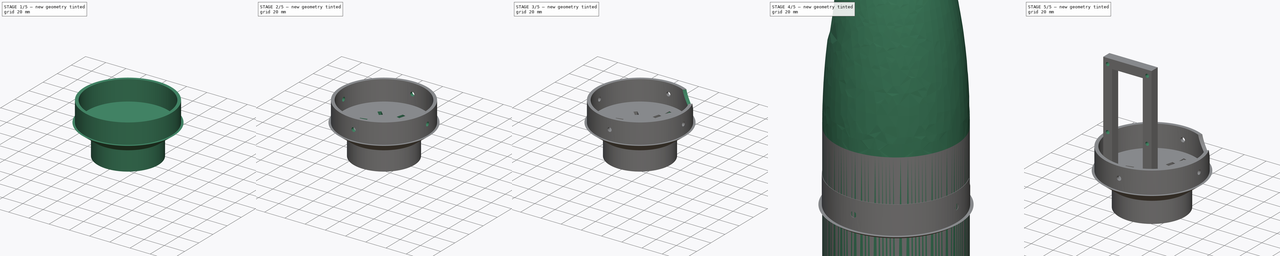
[diagram: build sequence overview — one tinted view per stage of 5, left to right]
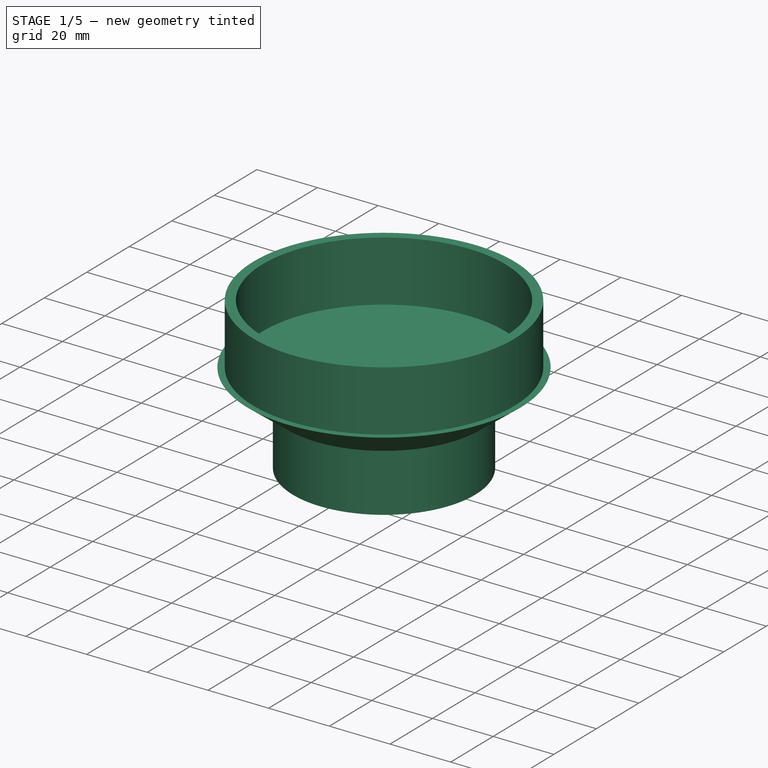
[diagram: stage 1 of 5 — iso view after this stage's code; geometry added in this stage tinted green]
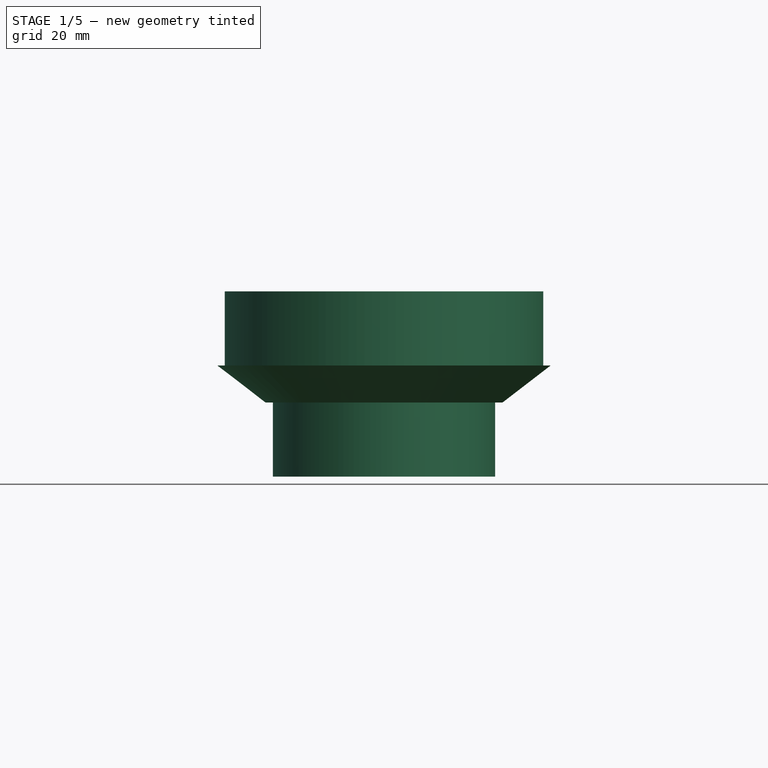
[diagram: stage 1 of 5 — front view after this stage's code; geometry added in this stage tinted green]
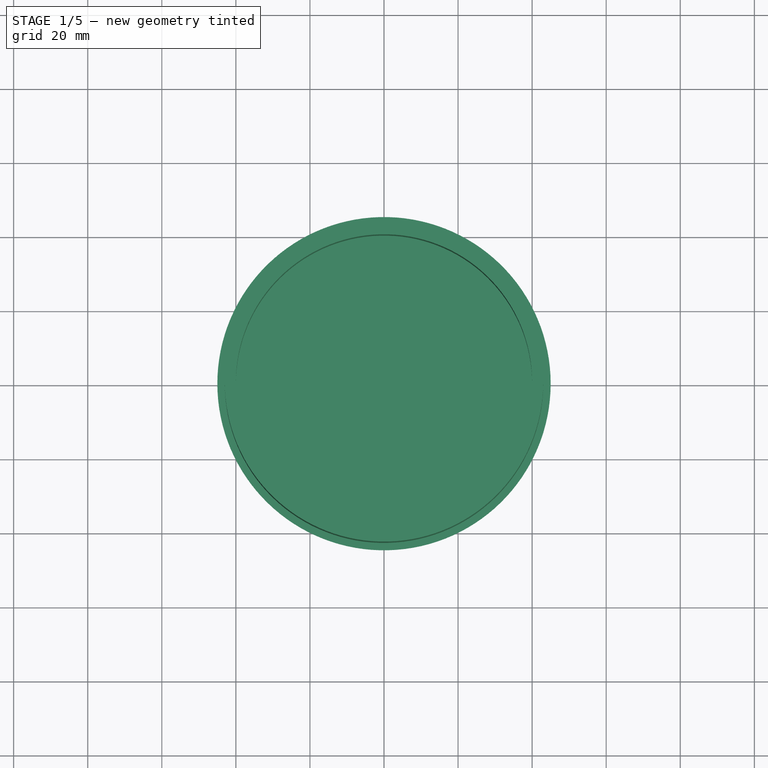
[diagram: stage 1 of 5 — top view after this stage's code; geometry added in this stage tinted green]
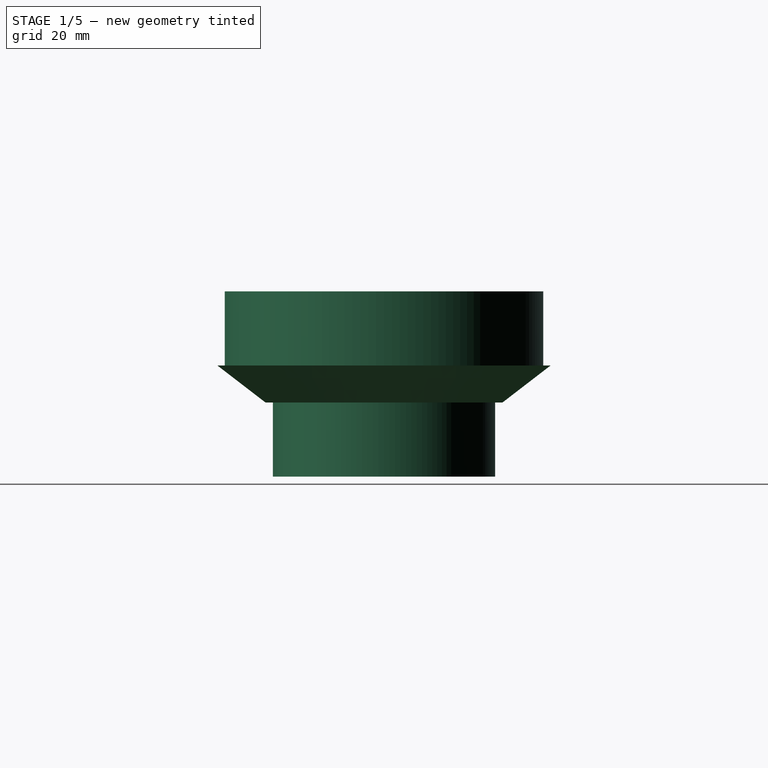
[diagram: stage 1 of 5 — right view after this stage's code; geometry added in this stage tinted green]
FCSTD DOCUMENT  (FreeCAD 1.0R39109 (Git))
Label: 250_etage2b_base_coiffe
License: All rights reserved
LicenseURL: https://en.wikipedia.org/wiki/All_rights_reserved
objects: Sketcher::SketchObject×9, PartDesign::Pocket×9, PartDesign::PolarPattern×3, Part::Cylinder×2, PartDesign::FeatureBase×2, Part::Box×2, PartDesign::Body×2, Part::Cone×1, Part::FeaturePython×1, Part::MultiFuse×1, Part::Cut×1, Part::Ellipsoid×1, Part::Fuse×1, Part::MultiCommon×1, App::Part×1
note: 68 computed .brp shape members not serialized (recipe doc carries the construction recipe); baked Part::Feature solids carry a one-line shape summary decoded from their .brp

FEATURE [Part::Cylinder] Cylinder  label="Cylindre"
  Angle = 360
  AttacherType = Attacher::AttachEngine3D
  FirstAngle = 0
  Height = 20
  Placement = pos=(0,0,-10) rot=(0,0,1;0rad)
  Radius = 30
  SecondAngle = 0
FEATURE [Part::Cone] Cone  label="Cône"
  Angle = 360
  AttacherType = Attacher::AttachEngine3D
  Height = 10
  Placement = pos=(0,0,10) rot=(0,0,1;0rad)
  Radius1 = 32
  Radius2 = 45
FEATURE [Part::FeaturePython] Tube  # WARN: FeaturePython — macro-defined, semantics opaque (R4)
  AttacherType = Attacher::AttachEngine3D
  Height = 20
  InnerRadius = 40
  OuterRadius = 43
  Placement = pos=(0,0,20) rot=(0,0,1;0rad)
FEATURE [Sketcher::SketchObject] Sketch
  ArcFitTolerance = 0
  AttachmentSupport = -> [XY_Plane]
  FullyConstrained = true
  MakeInternals = false
  MapMode = 5
  sketch-geometry (1):
    g0: Circle CenterX=0 CenterY=0 CenterZ=0 NormalX=0 NormalY=0 NormalZ=1 AngleXU=0 Radius=2
  constraints (2):
    c: Coincident(g0,g-1)
    c: Radius(g0) = 2
FEATURE [Part::MultiFuse] Fusion
  Shapes = -> [Tube,Cylinder,Cone]
FEATURE [PartDesign::FeatureBase] BaseFeature
  BaseFeature = -> Fusion
  Suppressed = false
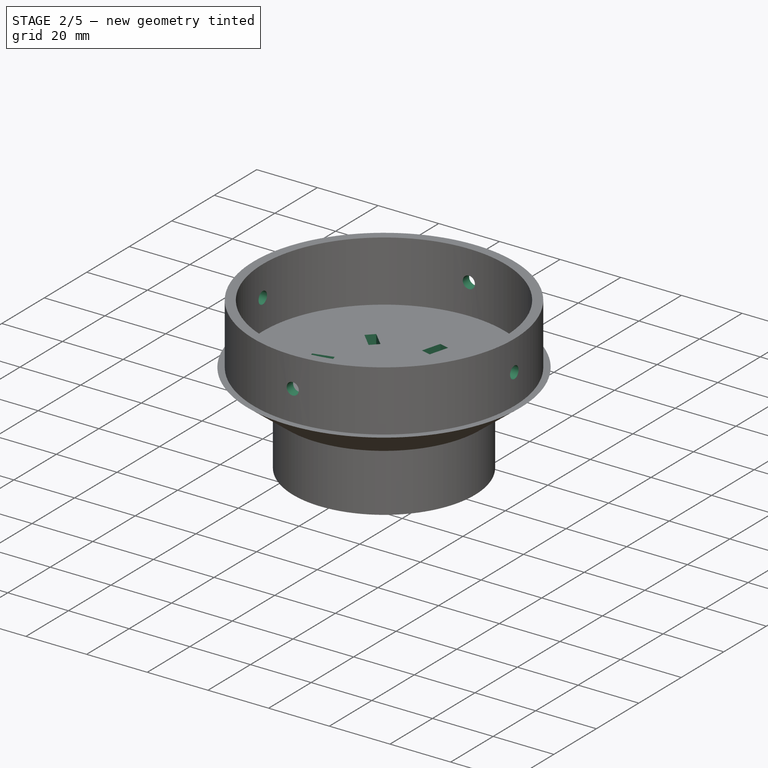
[diagram: stage 2 of 5 — iso view after this stage's code; geometry added in this stage tinted green]
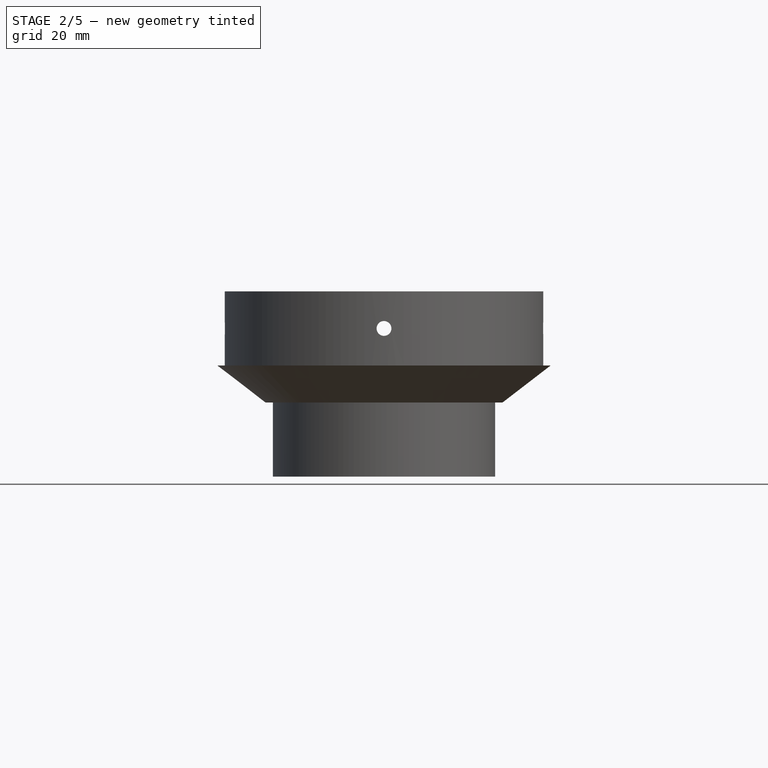
[diagram: stage 2 of 5 — front view after this stage's code; geometry added in this stage tinted green]
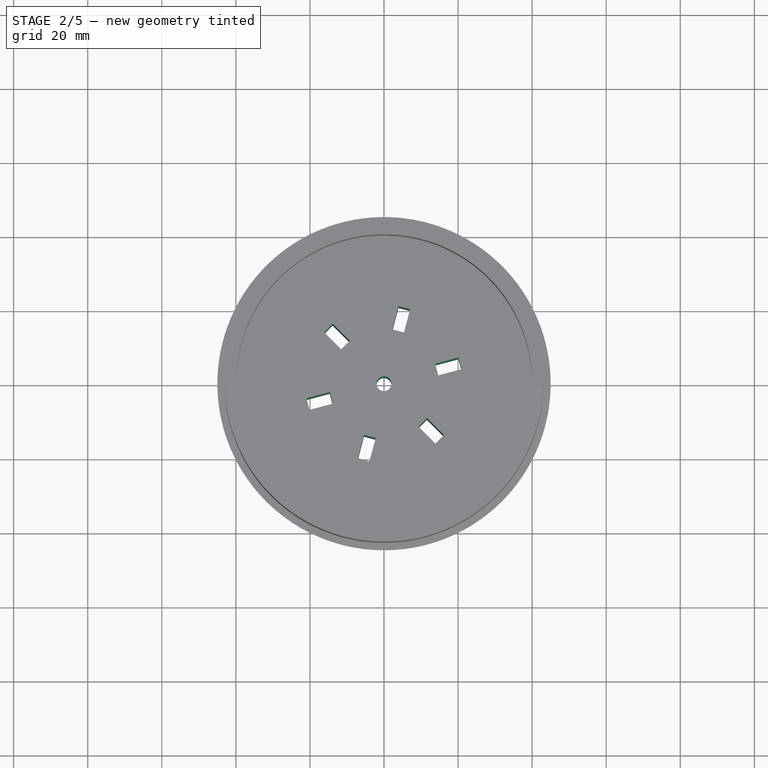
[diagram: stage 2 of 5 — top view after this stage's code; geometry added in this stage tinted green]
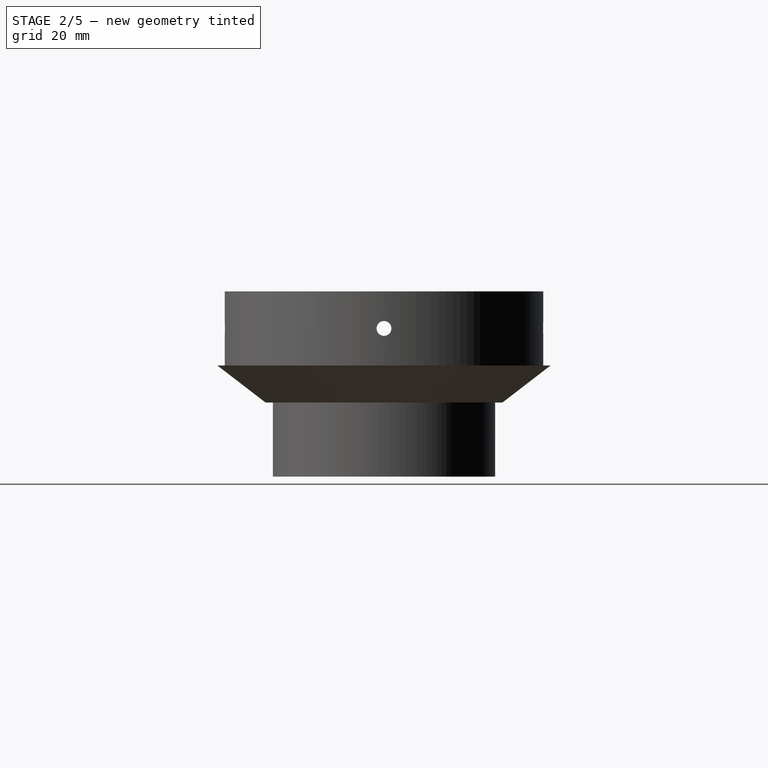
[diagram: stage 2 of 5 — right view after this stage's code; geometry added in this stage tinted green]
FEATURE [PartDesign::Pocket] Pocket  label="Trou crochet"
  BaseFeature = -> BaseFeature
  Direction = (0,0,-1)
  Length = 5
  Length2 = 5
  Midplane = true
  Profile = -> Sketch
  ReferenceAxis = -> Sketch [N_Axis]
  Suppressed = false
  Type = 1
FEATURE [Sketcher::SketchObject] Sketch001
  ArcFitTolerance = 0
  AttachmentSupport = -> [XZ_Plane]
  FullyConstrained = true
  MakeInternals = false
  MapMode = 5
  Placement = pos=(0,0,0) rot=(1,0,0;1.5708rad)
  sketch-geometry (1):
    g0: Circle CenterX=0 CenterY=30 CenterZ=0 NormalX=0 NormalY=0 NormalZ=1 AngleXU=0 Radius=2
  constraints (3):
    c: PointOnObject(g0,g-2)
    c: DistanceY(g-1,g0) = 30
    c: Radius(g0) = 2
FEATURE [PartDesign::Pocket] Pocket001  label="Trou insert M3"
  BaseFeature = -> Pocket
  Direction = (0,1,-2e-16)
  Length = 5
  Length2 = 5
  Midplane = true
  Profile = -> Sketch001
  ReferenceAxis = -> Sketch001 [N_Axis]
  Suppressed = false
  Type = 1
FEATURE [PartDesign::PolarPattern] PolarPattern  label="Trous insert M3"
  Angle = 360
  Axis = -> Z_Axis
  BaseFeature = -> Pocket001
  Mode = 0
  Occurrences = 4
  Offset = 120
  Originals = -> [Pocket001]
  Suppressed = false
  TransformMode = 0
FEATURE [Sketcher::SketchObject] Sketch002
  ArcFitTolerance = 0
  AttachmentOffset = pos=(0,0,0) rot=(0,0,1;0.785398rad)
  AttachmentSupport = -> [XY_Plane]
  FullyConstrained = true
  MakeInternals = false
  MapMode = 5
  Placement = pos=(0,0,0) rot=(0,0,1;0.785398rad)
  sketch-geometry (5):
    g0: LineSegment StartX=-1.625 StartY=21.25 StartZ=0 EndX=-1.625 EndY=14.75 EndZ=0
    g1: LineSegment StartX=-1.625 StartY=14.75 StartZ=0 EndX=1.625 EndY=14.75 EndZ=0
    g2: LineSegment StartX=1.625 StartY=14.75 StartZ=0 EndX=1.625 EndY=21.25 EndZ=0
    g3: LineSegment StartX=1.625 StartY=21.25 StartZ=0 EndX=-1.625 EndY=21.25 EndZ=0
    g4: GeomPoint [constr] X=0 Y=18 Z=0
  constraints (13):
    c: Coincident(g0,g1)
    c: Coincident(g1,g2)
    c: Coincident(g2,g3)
    c: Coincident(g3,g0)
    c: Horizontal(g1)
    c: Horizontal(g3)
    c: Vertical(g0)
    c: Vertical(g2)
    c: Symmetric(g1,g0,g4)
    c: PointOnObject(g4,g-2)
    c: Distance(g3) = 3.25
    c: DistanceY(g-1,g4) = 18
    c: Distance(g0,g0) = 6.5
FEATURE [PartDesign::Pocket] Pocket002  label="Passe fil"
  BaseFeature = -> PolarPattern
  Direction = (0,0,-1)
  Length = 5
  Length2 = 5
  Midplane = true
  Profile = -> Sketch002
  ReferenceAxis = -> Sketch002 [N_Axis]
  Suppressed = false
  Type = 1
FEATURE [PartDesign::PolarPattern] PolarPattern001
  Angle = 360
  Axis = -> Z_Axis
  BaseFeature = -> Pocket002
  Mode = 0
  Occurrences = 6
  Offset = 120
  Originals = -> [Pocket002]
  Suppressed = false
  TransformMode = 0
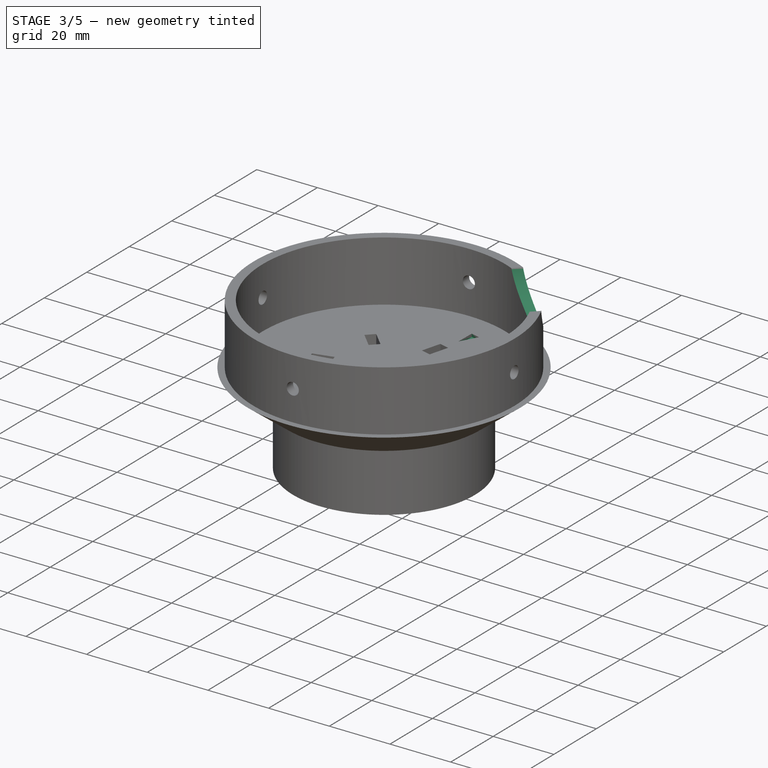
[diagram: stage 3 of 5 — iso view after this stage's code; geometry added in this stage tinted green]
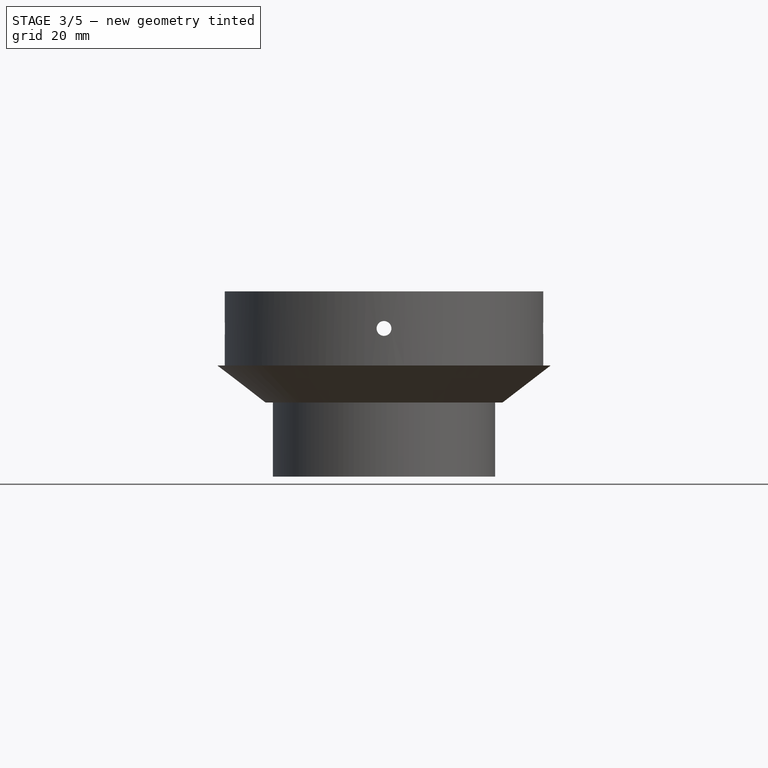
[diagram: stage 3 of 5 — front view after this stage's code; geometry added in this stage tinted green]
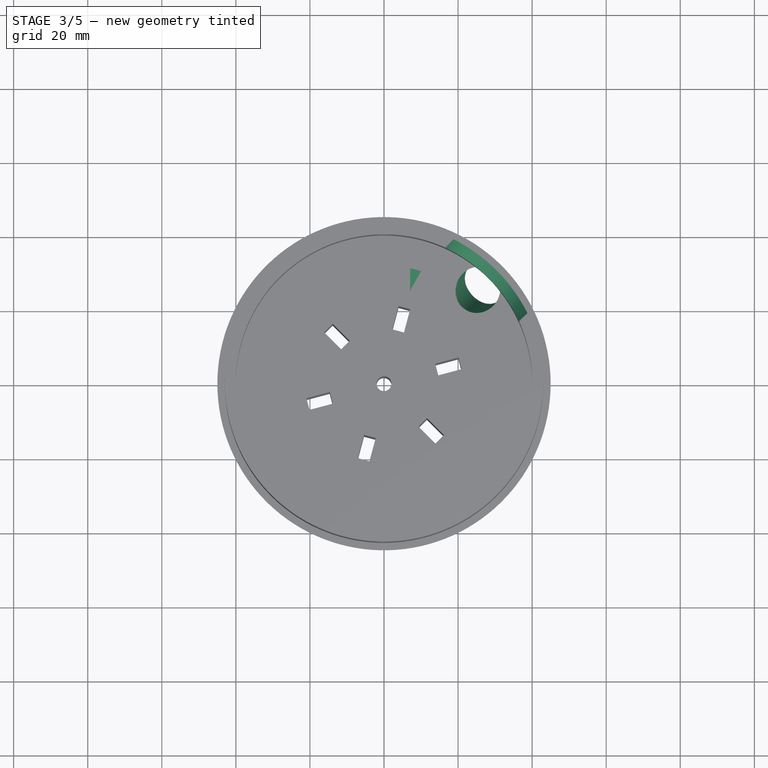
[diagram: stage 3 of 5 — top view after this stage's code; geometry added in this stage tinted green]
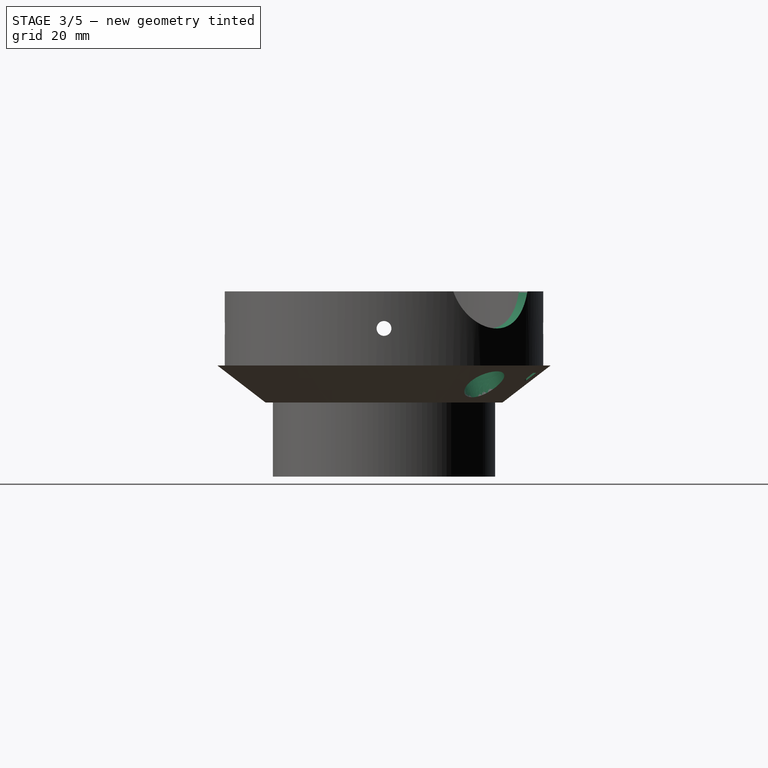
[diagram: stage 3 of 5 — right view after this stage's code; geometry added in this stage tinted green]
FEATURE [Sketcher::SketchObject] Sketch003
  ArcFitTolerance = 0
  AttachmentOffset = pos=(28,12.5,28) rot=(15,10,0;0.959931rad)
  AttachmentSupport = -> [YZ_Plane]
  FullyConstrained = true
  MakeInternals = false
  MapMode = 5
  Placement = pos=(28,28,12.5) rot=(0.511444,0.769546,0.382392;2.89428rad)
  sketch-geometry (1):
    g0: Circle CenterX=0 CenterY=0 CenterZ=0 NormalX=0 NormalY=0 NormalZ=1 AngleXU=0 Radius=6
  constraints (2):
    c: Radius(g0) = 6
    c: Coincident(g0,g-1)
FEATURE [PartDesign::Pocket] Pocket003  label="Trou caméra"
  BaseFeature = -> PolarPattern001
  Direction = (-0.71,-0.71,2)
  Length = 5
  Length2 = 5
  Profile = -> Sketch003
  ReferenceAxis = -> Sketch003 [N_Axis]
  Suppressed = false
  Type = 1
  UseCustomVector = true
FEATURE [PartDesign::Body] Body001  label="Support Arduino"
  AllowCompound = false
  BaseFeature = -> Common
  Group = -> [BaseFeature001,Sketch005,Pocket005,Sketch006,Pocket006,PolarPattern004]
  Origin = -> Origin002
  Placement = pos=(0,0,0) rot=(0,0,-1;0.785398rad)
  Tip = -> PolarPattern004
FEATURE [Sketcher::SketchObject] Sketch007  label="Hublot"
  ArcFitTolerance = 0
  AttachmentOffset = pos=(0,0,0) rot=(0,1,0;0.785398rad)
  AttachmentSupport = -> [YZ_Plane]
  FullyConstrained = true
  MakeInternals = false
  MapMode = 5
  Placement = pos=(0,0,0) rot=(0.281085,0.678598,0.678598;2.59356rad)
  sketch-geometry (1):
    g0: Circle CenterX=0 CenterY=45 CenterZ=0 NormalX=0 NormalY=0 NormalZ=1 AngleXU=0 Radius=15
  constraints (3):
    c: PointOnObject(g0,g-2)
    c: Radius(g0) = 15
    c: DistanceY(g-1,g0) = 45
FEATURE [PartDesign::Pocket] Pocket007  label="Hublot001"
  BaseFeature = -> Pocket003
  Direction = (-0.707107,-0.707107,0)
  Length = 5
  Length2 = 5
  Profile = -> Sketch007
  ReferenceAxis = -> Sketch007 [N_Axis]
  Reversed = true
  Suppressed = false
  Type = 1
FEATURE [Sketcher::SketchObject] Sketch008  label="sketch"
  ArcFitTolerance = 0
  AttachmentOffset = pos=(12,12,-41) rot=(0,1,0;2.87979rad)
  AttachmentSupport = -> [XZ_Plane]
  FullyConstrained = true
  MakeInternals = false
  MapMode = 5
  Placement = pos=(12,41,12) rot=(0.092692,0.704063,0.704063;2.95674rad)
  sketch-geometry (3):
    g0: LineSegment StartX=0 StartY=0 StartZ=0 EndX=1.5 EndY=6 EndZ=0
    g1: LineSegment StartX=1.5 StartY=6 StartZ=0 EndX=-1.5 EndY=6 EndZ=0
    g2: LineSegment StartX=-1.5 StartY=6 StartZ=0 EndX=0 EndY=0 EndZ=0
  constraints (7):
    c: Coincident(g0,g-1)
    c: Coincident(g1,g0)
    c: Coincident(g2,g1)
    c: Symmetric(g0,g1,g-2)
    c: DistanceX(g1,g1) = 3
    c: DistanceY(g0,g0) = 6
    c: Coincident(g2,g0)
FEATURE [PartDesign::Pocket] Pocket008  label="Marquage extérieur"
  BaseFeature = -> Pocket007
  Direction = (-0.258819,-0.965926,1e-16)
  Length = 3
  Length2 = 5
  Profile = -> Sketch008
  ReferenceAxis = -> Sketch008 [N_Axis]
  Suppressed = false
  Type = 0
FEATURE [Sketcher::SketchObject] Sketch009
  ArcFitTolerance = 0
  AttachmentOffset = pos=(7,25,20) rot=(0,0,1;-0.261799rad)
  AttachmentSupport = -> [XY_Plane]
  FullyConstrained = true
  MakeInternals = false
  MapMode = 5
  Placement = pos=(7,25,20) rot=(0,0,1;6.02139rad)
  sketch-geometry (3):
    g0: LineSegment StartX=0 StartY=0 StartZ=0 EndX=1.5 EndY=6 EndZ=0
    g1: LineSegment StartX=1.5 StartY=6 StartZ=0 EndX=-1.5 EndY=6 EndZ=0
    g2: LineSegment StartX=-1.5 StartY=6 StartZ=0 EndX=0 EndY=0 EndZ=0
  constraints (7):
    c: Coincident(g0,g-1)
    c: Coincident(g1,g0)
    c: Coincident(g2,g1)
    c: Coincident(g2,g0)
    c: Symmetric(g1,g0,g-2)
    c: DistanceX(g1,g1) = 3
    c: DistanceY(g0,g0) = 6
FEATURE [PartDesign::Pocket] Pocket009  label="Marquage intérieur"
  BaseFeature = -> Pocket008
  Direction = (0,0,-1)
  Length = 1
  Length2 = 5
  Profile = -> Sketch009
  ReferenceAxis = -> Sketch009 [N_Axis]
  Suppressed = false
  Type = 0
FEATURE [PartDesign::Body] Body  label="Corps"
  AllowCompound = false
  BaseFeature = -> Fusion
  Group = -> [BaseFeature,Sketch,Pocket,Sketch001,Pocket001,PolarPattern,Sketch002,Pocket002,PolarPattern001,Sketch003,Pocket003,Sketch007,Pocket007,Sketch008,Pocket008,Sketch009,Pocket009]
  Origin = -> Origin
  Tip = -> Pocket009
FEATURE [App::Part] Part
  Group = -> [Cylinder,Tube,Cone,Fusion,Body001,Body]
  Origin = -> Origin001
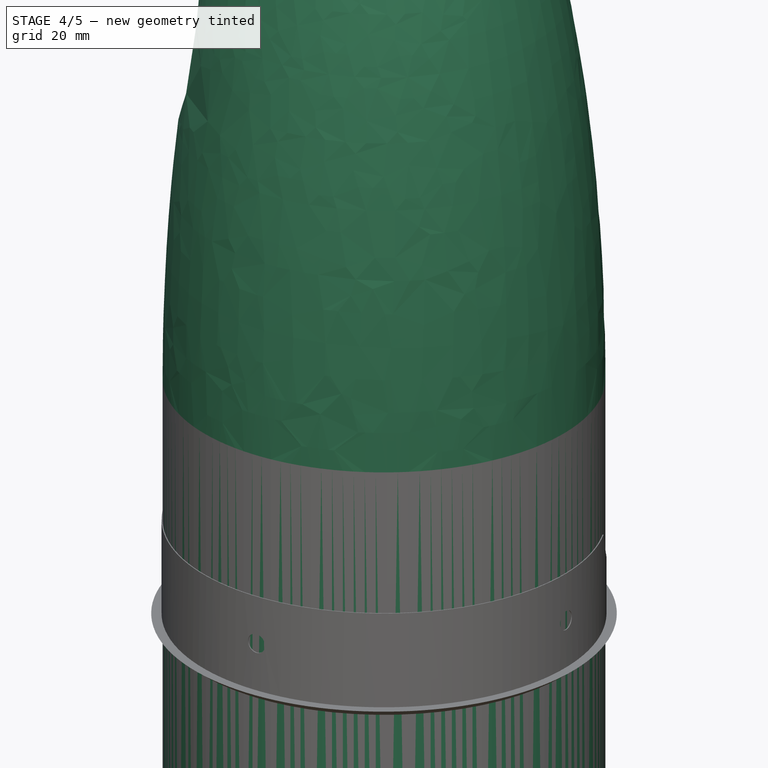
[diagram: stage 4 of 5 — iso view after this stage's code; geometry added in this stage tinted green]
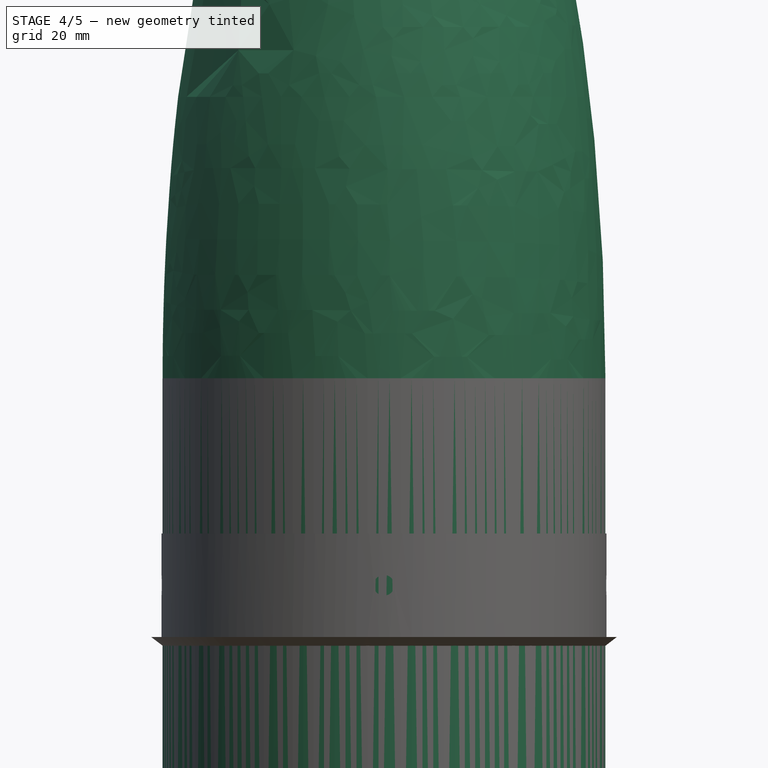
[diagram: stage 4 of 5 — front view after this stage's code; geometry added in this stage tinted green]
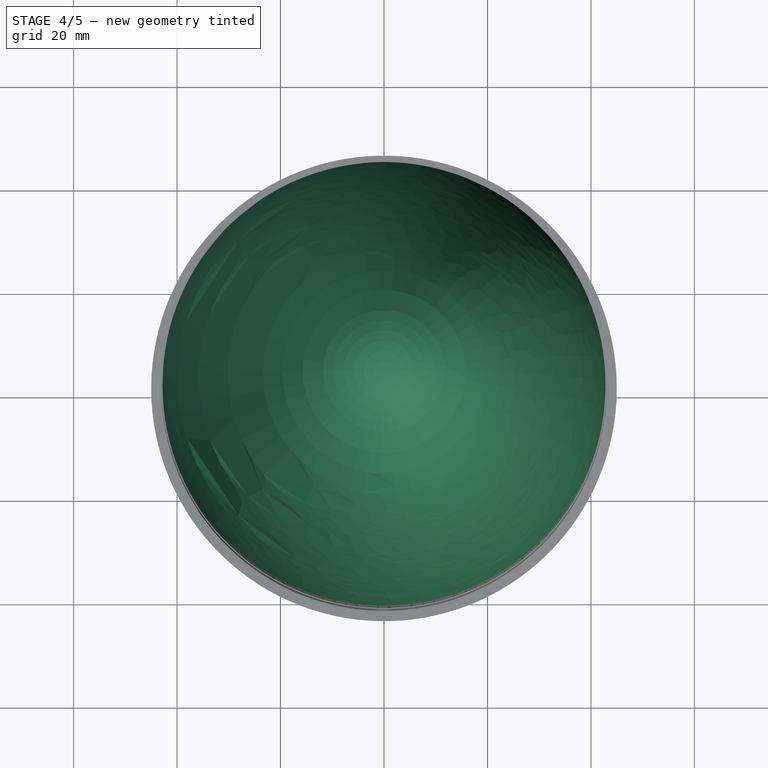
[diagram: stage 4 of 5 — top view after this stage's code; geometry added in this stage tinted green]
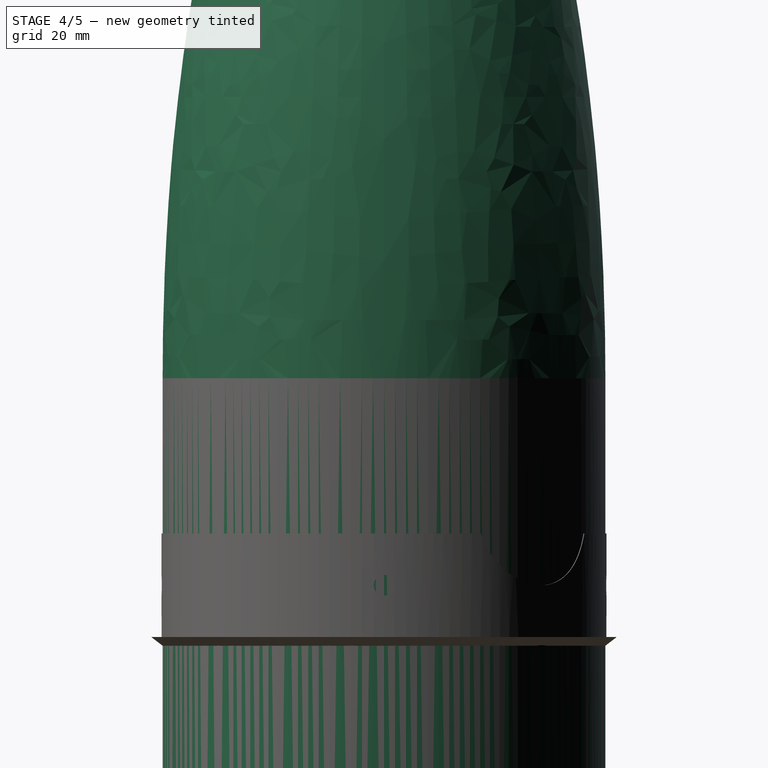
[diagram: stage 4 of 5 — right view after this stage's code; geometry added in this stage tinted green]
FEATURE [Part::Box] Box  label="Cube"
  AttacherType = Attacher::AttachEngine3D
  Height = 100
  Length = 44
  Placement = pos=(-22,-4,0) rot=(0,0,1;0rad)
  Width = 8
FEATURE [Part::Box] Box001  label="Cube001"
  AttacherType = Attacher::AttachEngine3D
  Height = 92
  Length = 28
  Placement = pos=(-14,-4,0) rot=(0,0,1;0rad)
  Width = 8
FEATURE [Part::Cut] Cut
  Base = -> Box
  Placement = pos=(0,-28,20) rot=(0,0,1;0rad)
  Tool = -> Box001
FEATURE [Part::Ellipsoid] Ellipsoid003  label="Ellipsoïde003"
  Angle1 = -90
  Angle2 = 90
  Angle3 = 360
  AttacherType = Attacher::AttachEngine3D
  Radius1 = 147.8
  Radius2 = 42.8
  Radius3 = 42.8
FEATURE [Part::Cylinder] Cylinder001  label="Cylindre001"
  Angle = 360
  AttacherType = Attacher::AttachEngine3D
  FirstAngle = 0
  Height = 150
  Placement = pos=(0,0,-150) rot=(0,0,1;0rad)
  Radius = 42.8
  SecondAngle = 0
FEATURE [Part::Fuse] Fusion001
  Base = -> Ellipsoid003
  Placement = pos=(0,0,70) rot=(0,0,1;0rad)
  Tool = -> Cylinder001
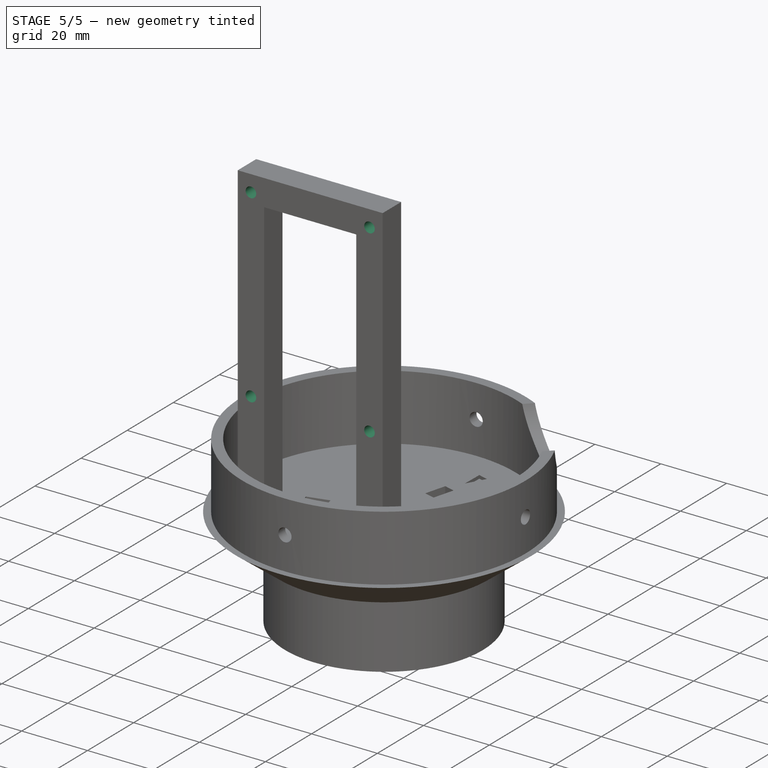
[diagram: stage 5 of 5 — iso view after this stage's code; geometry added in this stage tinted green]
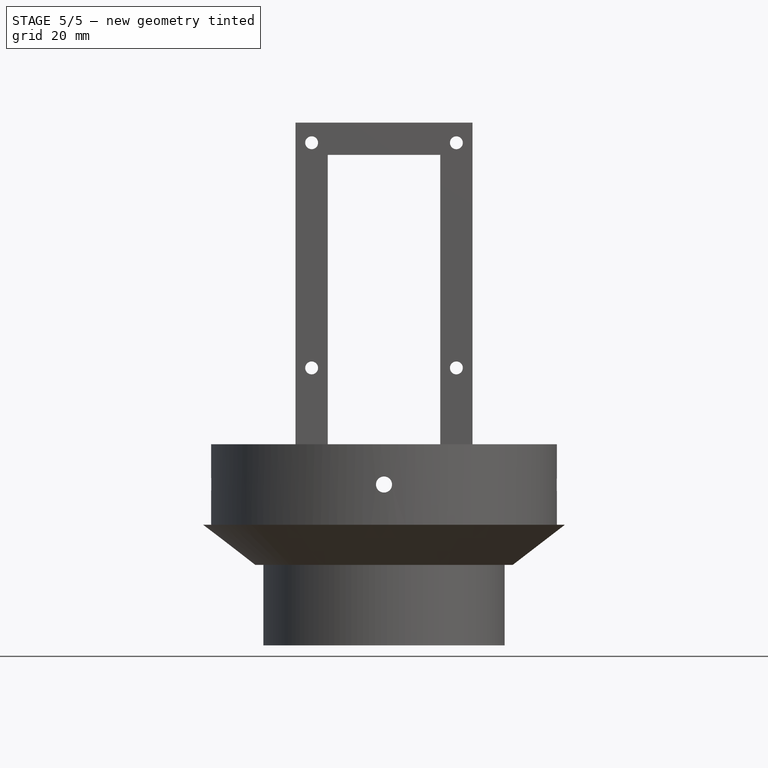
[diagram: stage 5 of 5 — front view after this stage's code; geometry added in this stage tinted green]
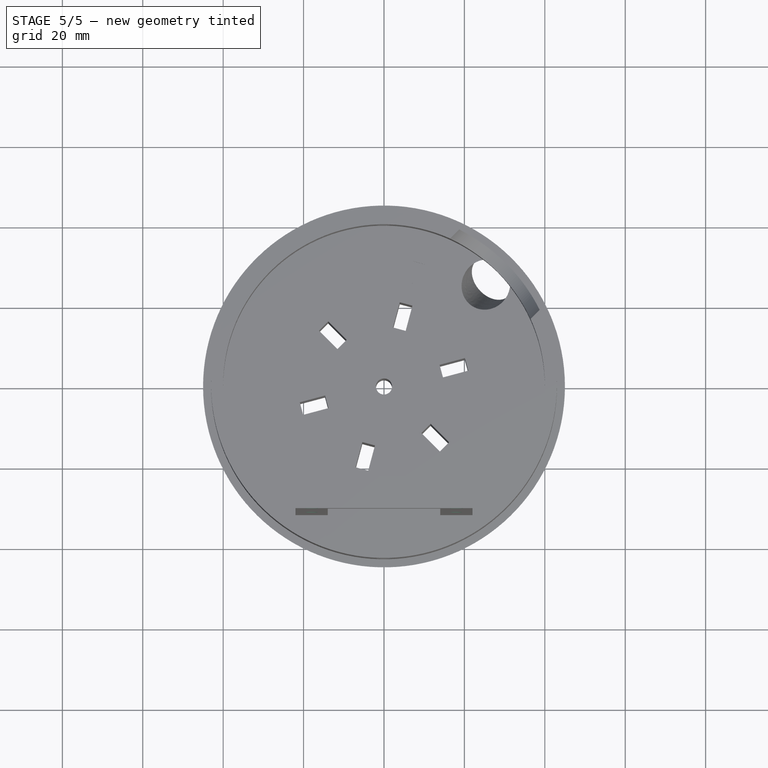
[diagram: stage 5 of 5 — top view after this stage's code; geometry added in this stage tinted green]
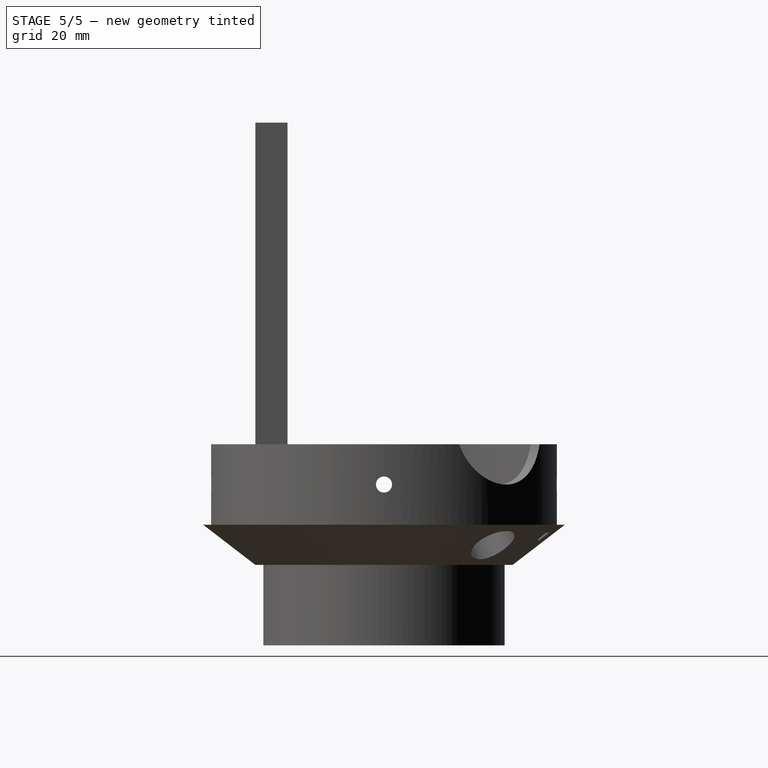
[diagram: stage 5 of 5 — right view after this stage's code; geometry added in this stage tinted green]
FEATURE [Sketcher::SketchObject] Sketch005  label="Trous M2"
  ArcFitTolerance = 0
  AttachmentSupport = -> [XZ_Plane002]
  FullyConstrained = true
  MakeInternals = false
  MapMode = 5
  Placement = pos=(0,0,0) rot=(1,0,0;1.5708rad)
  sketch-geometry (7):
    g0: Circle CenterX=-18 CenterY=115 CenterZ=0 NormalX=0 NormalY=0 NormalZ=1 AngleXU=0 Radius=1.6
    g1: Circle CenterX=18 CenterY=115 CenterZ=0 NormalX=0 NormalY=0 NormalZ=1 AngleXU=0 Radius=1.6
    g2: LineSegment [constr] StartX=-18 StartY=115 StartZ=0 EndX=18 EndY=115 EndZ=0
    g3: Circle CenterX=-18 CenterY=59 CenterZ=0 NormalX=0 NormalY=0 NormalZ=1 AngleXU=0 Radius=1.6
    g4: LineSegment [constr] StartX=-18 StartY=115 StartZ=0 EndX=-18 EndY=59 EndZ=0
    g5: Circle CenterX=18 CenterY=59 CenterZ=0 NormalX=0 NormalY=0 NormalZ=1 AngleXU=0 Radius=1.6
    g6: LineSegment [constr] StartX=-18 StartY=59 StartZ=0 EndX=18 EndY=59 EndZ=0
  constraints (18):
    c: Radius(g0) = 1.6
    c: DistanceX(g0,g-1) = 18
    c: DistanceY(g-1,g0) = 115
    c: Radius(g1) = 1.6
    c: Coincident(g0,g2)
    c: Coincident(g1,g2)
    c: Distance(g2) = 36
    c: Angle(g2) = 0
    c: Radius(g3) = 1.6
    c: Coincident(g0,g4)
    c: Coincident(g3,g4)
    c: Distance(g4) = 56
    c: Perpendicular(g4,g2)
    c: Radius(g5) = 1.6
    c: Coincident(g3,g6)
    c: Coincident(g5,g6)
    c: Equal(g2,g6)
    c: Parallel(g6,g2)
FEATURE [Sketcher::SketchObject] Sketch006  label="Trous M3"
  ArcFitTolerance = 0
  AttachmentOffset = pos=(0,0,0) rot=(0,1,0;0.785398rad)
  AttachmentSupport = -> [XZ_Plane002]
  FullyConstrained = true
  MakeInternals = false
  MapMode = 5
  Placement = pos=(0,0,0) rot=(0.862856,0.357407,0.357407;1.71777rad)
  sketch-geometry (1):
    g0: Circle CenterX=0 CenterY=30 CenterZ=0 NormalX=0 NormalY=0 NormalZ=1 AngleXU=0 Radius=2
  constraints (3):
    c: PointOnObject(g0,g-2)
    c: DistanceY(g-1,g0) = 30
    c: Radius(g0) = 2
FEATURE [Part::MultiCommon] Common  label="Coiffe pour découpe support Arduino"
  Shapes = -> [Fusion001,Cut]
FEATURE [PartDesign::FeatureBase] BaseFeature001
  BaseFeature = -> Common
  Suppressed = false
FEATURE [PartDesign::Pocket] Pocket005
  BaseFeature = -> BaseFeature001
  Direction = (0,1,-2e-16)
  Length = 5
  Length2 = 5
  Profile = -> Sketch005
  ReferenceAxis = -> Sketch005 [N_Axis]
  Reversed = true
  Suppressed = false
  Type = 1
FEATURE [PartDesign::Pocket] Pocket006
  BaseFeature = -> Pocket005
  Direction = (-0.707107,0.707107,-1e-16)
  Length = 5
  Length2 = 5
  Midplane = true
  Profile = -> Sketch006
  ReferenceAxis = -> Sketch006 [N_Axis]
  Suppressed = false
  Type = 1
FEATURE [PartDesign::PolarPattern] PolarPattern004
  Angle = 360
  Axis = -> Z_Axis002
  BaseFeature = -> Pocket006
  Mode = 0
  Occurrences = 4
  Offset = 120
  Originals = -> [Pocket006]
  Suppressed = false
  TransformMode = 0
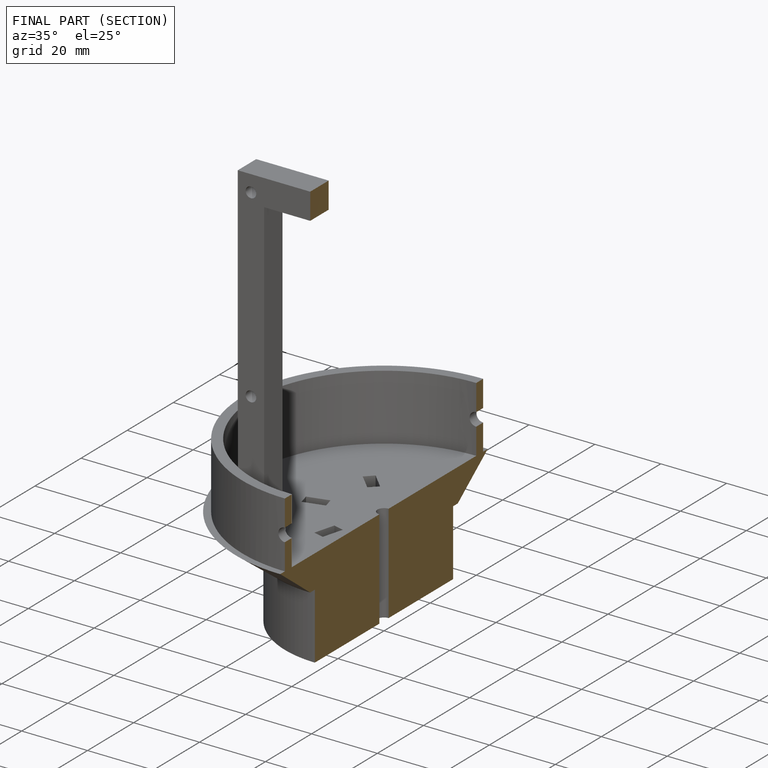
[diagram: finished part — half-section view (interior)]
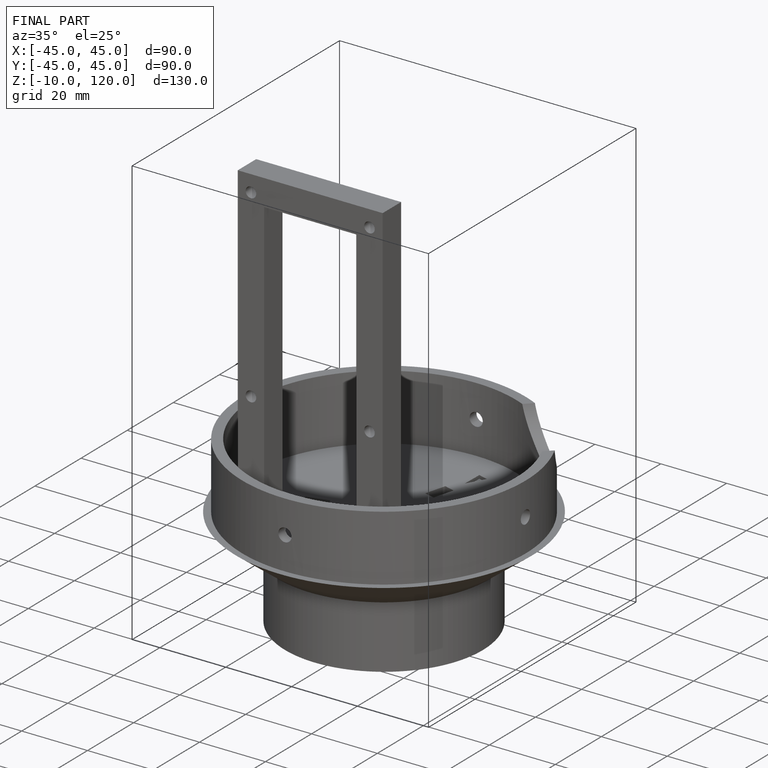
[diagram: finished part — iso view with bounding-box wireframe]
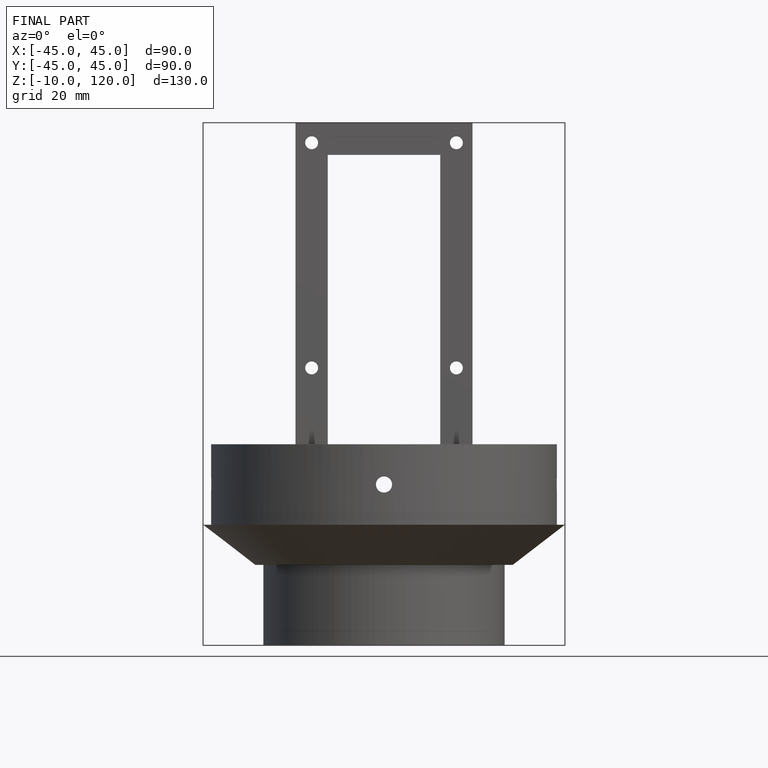
[diagram: finished part — front view with bounding-box wireframe]
